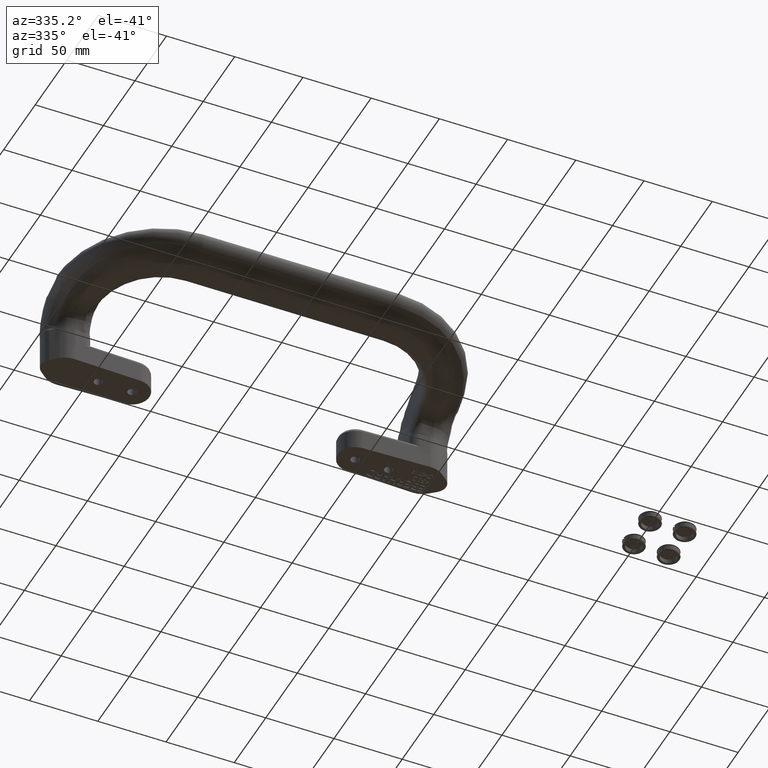
[diagram: clean part render]
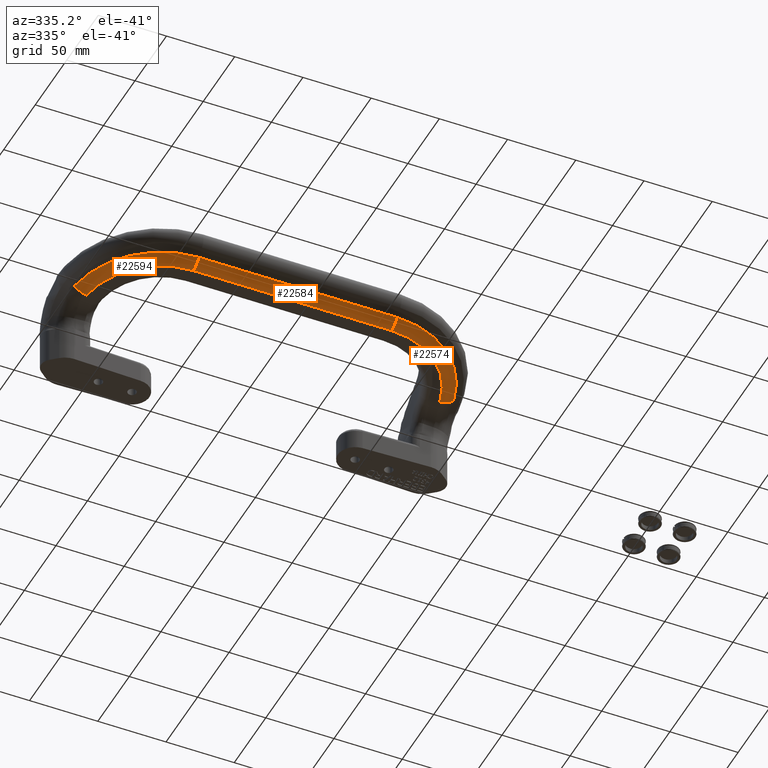
[diagram: same view with one multi-face feature highlighted, each face labeled with its STEP entity id]
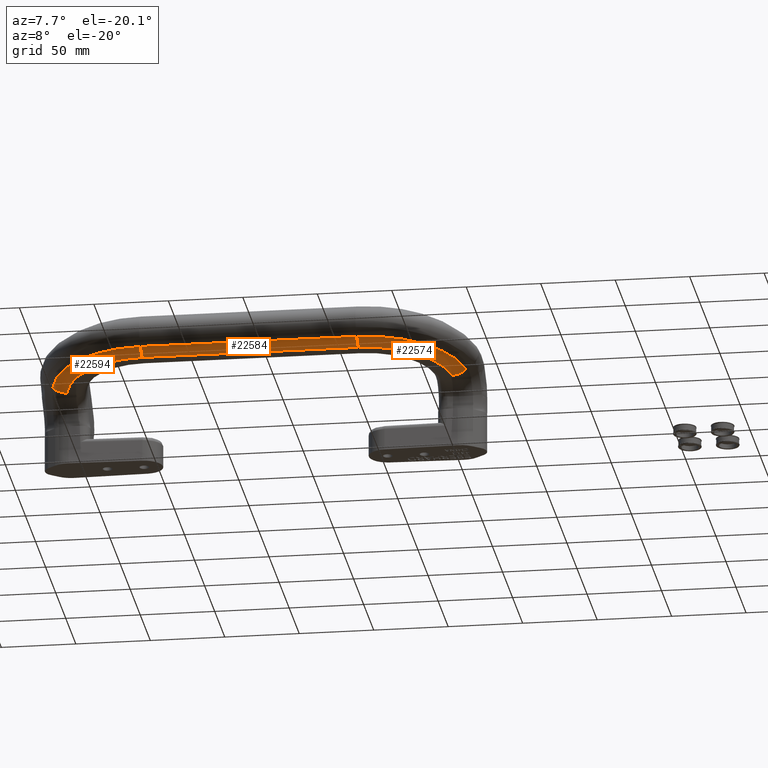
[diagram: same view with one multi-face feature highlighted, each face labeled with its STEP entity id]
A machine part, auxiliary view. The highlighted faces form ONE feature: a constant-radius fillet chain: 3 tangent blend faces with common blend radius 14.2873 mm. The faces share edges in the B-rep.
A second angle (auxiliary view) of the same feature is appended — it is thin or edge-on in the first view.
Their STEP definitions:
[1] entity #22584 (Cylinder):
#2364=FACE_OUTER_BOUND('',#3766,.T.);
#3766=EDGE_LOOP('',(#15715,#15716,#15717,#15718));
#5463=LINE('',#36247,#6736);
#5477=LINE('',#36282,#6750);
#6736=VECTOR('',#27219,0.00155000310000955);
#6750=VECTOR('',#27257,0.00155000310000955);
#7412=CIRCLE('',#23925,0.562494093107);
#7417=CIRCLE('',#23940,0.562494094183);
#9120=VERTEX_POINT('',#36206);
#9129=VERTEX_POINT('',#36240);
#9130=VERTEX_POINT('',#36246);
#9139=VERTEX_POINT('',#36280);
#11456=EDGE_CURVE('',#9129,#9120,#7412,.T.);
#11457=EDGE_CURVE('',#9120,#9130,#5463,.T.);
#11475=EDGE_CURVE('',#9129,#9139,#5477,.T.);
#11476=EDGE_CURVE('',#9139,#9130,#7417,.T.);
#15715=ORIENTED_EDGE('',*,*,#11456,.F.);
#15716=ORIENTED_EDGE('',*,*,#11475,.T.);
#15717=ORIENTED_EDGE('',*,*,#11476,.T.);
#15718=ORIENTED_EDGE('',*,*,#11457,.F.);
#20564=CYLINDRICAL_SURFACE('',#23939,0.562494094183);
#22584=ADVANCED_FACE('',(#2364),#20564,.T.);
#23925=AXIS2_PLACEMENT_3D('',#36244,#27215,#27216);
#23939=AXIS2_PLACEMENT_3D('',#36283,#27258,#27259);
#23940=AXIS2_PLACEMENT_3D('',#36284,#27260,#27261);
#27215=DIRECTION('center_axis',(0.999999999983356,-5.72762312801792E-6,
6.94949818510119E-7));
#27216=DIRECTION('ref_axis',(-5.7276231280193E-6,-0.999999999983597,0.));
#27219=DIRECTION('',(-1.,0.,0.));
#27257=DIRECTION('',(-1.,0.,0.));
#27258=DIRECTION('center_axis',(1.,-2.44160123984836E-17,2.59886969041099E-17));
#27259=DIRECTION('ref_axis',(4.32685199095384E-29,-0.728814652115503,-0.684711036030352));
#27260=DIRECTION('center_axis',(1.,-2.44160123984836E-17,2.59886969041099E-17));
#27261=DIRECTION('ref_axis',(-2.44160123984836E-17,-1.,0.));
#36206=CARTESIAN_POINT('',(-0.360004552597849,-3.04973083404653,1.93970798056649));
#36240=CARTESIAN_POINT('',(-0.360006337409873,-3.40995641563175,2.1148474147998));
#36244=CARTESIAN_POINT('Origin',(-0.360013270166,-3.00000364252,2.49999689685));
#36246=CARTESIAN_POINT('',(-6.0775,-3.04973070359,1.93970945081));
#36247=CARTESIAN_POINT('',(-3.21875,-3.04973070359,1.93970945081));
#36280=CARTESIAN_POINT('',(-6.0775,-3.40995723327135,2.11484664667143));
#36282=CARTESIAN_POINT('',(-3.21875,-3.40995723327,2.11484664667));
#36283=CARTESIAN_POINT('Origin',(-6.0775,-3.00000364216,2.49999689825));
#36284=CARTESIAN_POINT('Origin',(-6.0775,-3.00000364216,2.49999689825));
[2] entity #22574 (Torus):
#43=TOROIDAL_SURFACE('',#23924,2.30000324226,0.562494093107);
#2354=FACE_OUTER_BOUND('',#3756,.T.);
#3756=EDGE_LOOP('',(#15675,#15676,#15677,#15678));
#7384=CIRCLE('',#23864,0.562494102519111);
#7398=CIRCLE('',#23902,2.28188183633);
#7411=CIRCLE('',#23923,2.66058092805);
#7412=CIRCLE('',#23925,0.562494093107);
#9086=VERTEX_POINT('',#35426);
#9089=VERTEX_POINT('',#35613);
#9120=VERTEX_POINT('',#36206);
#9129=VERTEX_POINT('',#36240);
#11374=EDGE_CURVE('',#9086,#9089,#7384,.T.);
#11437=EDGE_CURVE('',#9089,#9120,#7398,.T.);
#11455=EDGE_CURVE('',#9086,#9129,#7411,.F.);
#11456=EDGE_CURVE('',#9129,#9120,#7412,.T.);
#15675=ORIENTED_EDGE('',*,*,#11374,.F.);
#15676=ORIENTED_EDGE('',*,*,#11455,.T.);
#15677=ORIENTED_EDGE('',*,*,#11456,.T.);
#15678=ORIENTED_EDGE('',*,*,#11437,.F.);
#22574=ADVANCED_FACE('',(#2354),#43,.T.);
#23864=AXIS2_PLACEMENT_3D('',#35614,#27054,#27055);
#23902=AXIS2_PLACEMENT_3D('',#36207,#27164,#27165);
#23923=AXIS2_PLACEMENT_3D('',#36242,#27211,#27212);
#23924=AXIS2_PLACEMENT_3D('',#36243,#27213,#27214);
#23925=AXIS2_PLACEMENT_3D('',#36244,#27215,#27216);
#27054=DIRECTION('center_axis',(0.188834633721592,0.974861788540237,-0.118262311627006));
#27055=DIRECTION('ref_axis',(-0.031631197695445,-0.114328242810599,-0.992939333609155));
#27164=DIRECTION('center_axis',(-4.64905891563472E-16,-0.120449648613414,
-0.992719437781343));
#27165=DIRECTION('ref_axis',(1.,0.,-4.68315491638306E-16));
#27211=DIRECTION('center_axis',(-1.28369537222431E-16,0.120449648613414,
0.992719437781343));
#27212=DIRECTION('ref_axis',(-1.,0.,-1.2931099395951E-16));
#27213=DIRECTION('center_axis',(-4.13987341427145E-17,-0.120449648613414,
-0.992719437781343));
#27214=DIRECTION('ref_axis',(0.982005912456915,-0.18747523771668,0.0227469369967792));
#27215=DIRECTION('center_axis',(0.999999999983356,-5.72762312801792E-6,
6.94949818510119E-7));
#27216=DIRECTION('ref_axis',(-5.7276231280193E-6,-0.999999999983597,0.));
#35426=CARTESIAN_POINT('',(2.25270749449789,-1.26752413499821,1.85490079061355));
#35613=CARTESIAN_POINT('',(1.88082466576,-1.21224836955,1.71675792094));
#35614=CARTESIAN_POINT('Origin',(1.8986170279193,-1.14793940721766,2.27528044025441));
#36206=CARTESIAN_POINT('',(-0.360004552597849,-3.04973083404653,1.93970798056649));
#36207=CARTESIAN_POINT('Origin',(-0.36,-0.784462249938,1.66485758545));
#36240=CARTESIAN_POINT('',(-0.360006337409873,-3.40995641563175,2.1148474147998));
#36242=CARTESIAN_POINT('Origin',(-0.36,-0.768746830199,1.79438060878));
#36243=CARTESIAN_POINT('Origin',(-0.36,-0.716745717001,2.22296231452));
#36244=CARTESIAN_POINT('Origin',(-0.360013270166,-3.00000364252,2.49999689685));
[3] entity #22594 (Torus):
#48=TOROIDAL_SURFACE('',#23964,2.30000324204,0.562494094183);
#2374=FACE_OUTER_BOUND('',#3776,.T.);
#3776=EDGE_LOOP('',(#15755,#15756,#15757,#15758));
#7417=CIRCLE('',#23940,0.562494094183);
#7418=CIRCLE('',#23942,2.28188183633);
#7431=CIRCLE('',#23963,2.66058092805);
#7432=CIRCLE('',#23965,0.562494094183);
#9130=VERTEX_POINT('',#36246);
#9139=VERTEX_POINT('',#36280);
#9140=VERTEX_POINT('',#36286);
#9149=VERTEX_POINT('',#36320);
#11476=EDGE_CURVE('',#9139,#9130,#7417,.T.);
#11477=EDGE_CURVE('',#9130,#9140,#7418,.T.);
#11495=EDGE_CURVE('',#9139,#9149,#7431,.F.);
#11496=EDGE_CURVE('',#9149,#9140,#7432,.T.);
#15755=ORIENTED_EDGE('',*,*,#11476,.F.);
#15756=ORIENTED_EDGE('',*,*,#11495,.T.);
#15757=ORIENTED_EDGE('',*,*,#11496,.T.);
#15758=ORIENTED_EDGE('',*,*,#11477,.F.);
#22594=ADVANCED_FACE('',(#2374),#48,.T.);
#23940=AXIS2_PLACEMENT_3D('',#36284,#27260,#27261);
#23942=AXIS2_PLACEMENT_3D('',#36287,#27264,#27265);
#23963=AXIS2_PLACEMENT_3D('',#36322,#27311,#27312);
#23964=AXIS2_PLACEMENT_3D('',#36323,#27313,#27314);
#23965=AXIS2_PLACEMENT_3D('',#36324,#27315,#27316);
#27260=DIRECTION('center_axis',(1.,-2.44160123984836E-17,2.59886969041099E-17));
#27261=DIRECTION('ref_axis',(-2.44160123984836E-17,-1.,0.));
#27264=DIRECTION('center_axis',(-4.81205152185627E-29,-0.120449648613414,
-0.992719437781343));
#27265=DIRECTION('ref_axis',(1.,0.,-4.84734290346008E-29));
#27311=DIRECTION('center_axis',(1.57772181044435E-29,0.120449648613414,
0.992719437781343));
#27312=DIRECTION('ref_axis',(-1.,0.,1.58929275523248E-29));
#27313=DIRECTION('center_axis',(-4.13987341427145E-17,-0.120449648613414,
-0.992719437781343));
#27314=DIRECTION('ref_axis',(9.30842878133878E-16,-0.992719437781343,0.120449648613414));
#27315=DIRECTION('center_axis',(0.188844507339068,-0.974857438958583,0.118282398331183));
#27316=DIRECTION('ref_axis',(0.,0.120449648613441,0.992719437781339));
#36246=CARTESIAN_POINT('',(-6.0775,-3.04973070359,1.93970945081));
#36280=CARTESIAN_POINT('',(-6.0775,-3.40995723327135,2.11484664667143));
#36284=CARTESIAN_POINT('Origin',(-6.0775,-3.00000364216,2.49999689825));
#36286=CARTESIAN_POINT('',(-8.31832507754641,-1.21224623850733,1.71675766186636));
#36287=CARTESIAN_POINT('Origin',(-6.0775,-0.784462249938,1.66485758545));
#36320=CARTESIAN_POINT('',(-8.69020749449789,-1.26752413499821,1.85490079061356));
#36322=CARTESIAN_POINT('Origin',(-6.0775,-0.768746830199,1.79438060878));
#36323=CARTESIAN_POINT('Origin',(-6.0775,-0.716745716829,2.22296231593));
#36324=CARTESIAN_POINT('Origin',(-8.33611928839,-1.14792643487,2.27527877515));